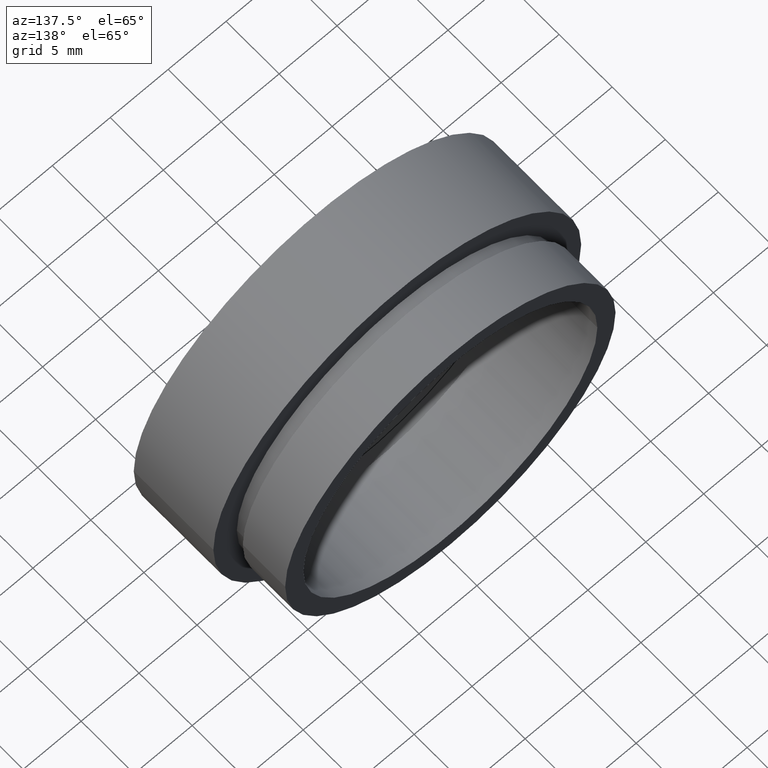
[diagram: clean part render]
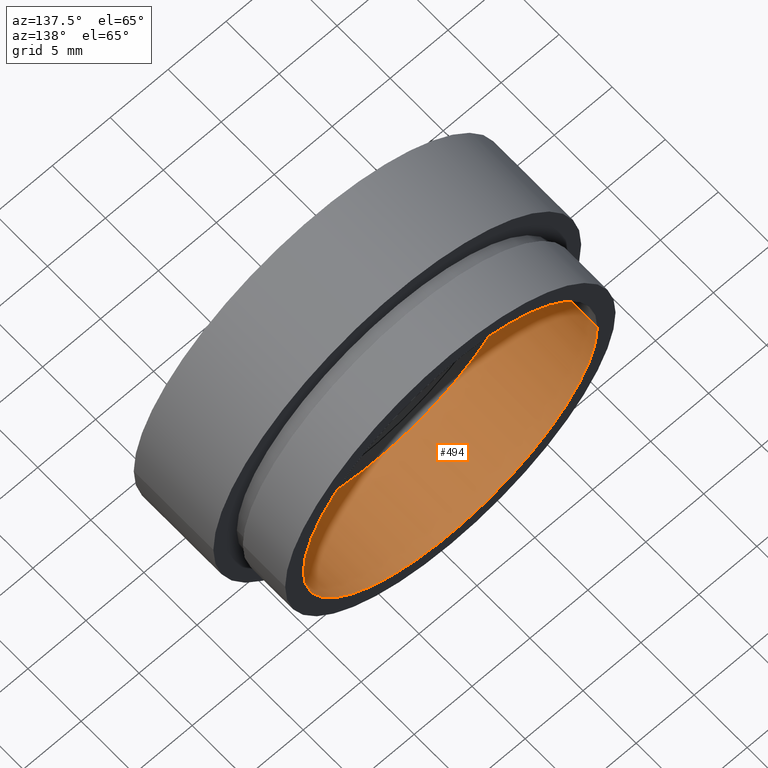
[diagram: same view with one face highlighted and labeled with its STEP entity id]
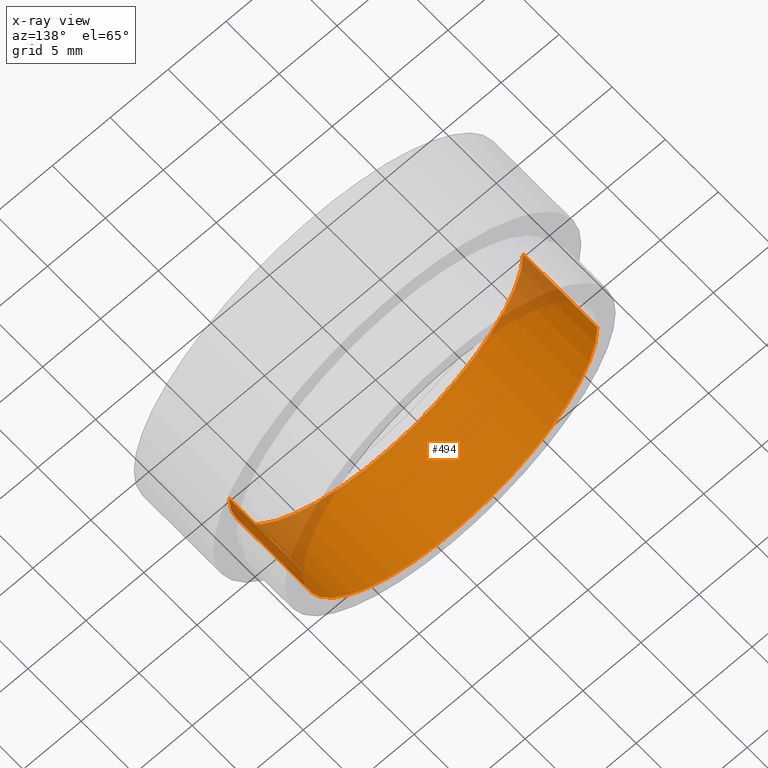
[diagram: x-ray of the same camera — body ghosted, the highlighted face saturated]
A machine part, auxiliary view. The second image highlights one B-rep face of the part: STEP entity #494.
The next image is the same camera in x-ray: the body ghosted, the highlighted face saturated — about 11% of this face is hidden behind the body in this view.
In plain terms, the highlighted cylindrical surface (partial cylindrical patch) has radius 12.69 mm, axis along (-0, 1, -0).
Its self-contained STEP definition (entity closure, byte-faithful):
#2 = DIRECTION ( 'NONE',  ( -1.000000000000000000, -1.367000375080226200E-016, 0.0000000000000000000 ) ) ;
#34 = EDGE_CURVE ( 'NONE', #369, #287, #443, .T. ) ;
#38 = DIRECTION ( 'NONE',  ( -1.000000000000000000, 0.0000000000000000000, 0.0000000000000000000 ) ) ;
#58 = CARTESIAN_POINT ( 'NONE',  ( -12.68999999999999600, 5.499999999999994700, 0.0000000000000000000 ) ) ;
#83 = DIRECTION ( 'NONE',  ( -1.224646799147351000E-016, 1.000000000000000000, -0.0000000000000000000 ) ) ;
#84 = AXIS2_PLACEMENT_3D ( 'NONE', #520, #218, #2 ) ;
#149 = FACE_OUTER_BOUND ( 'NONE', #154, .T. ) ;
#154 = EDGE_LOOP ( 'NONE', ( #221, #315, #478, #454 ) ) ;
#162 = AXIS2_PLACEMENT_3D ( 'NONE', #204, #213, #38 ) ;
#164 = CARTESIAN_POINT ( 'NONE',  ( 1.394385078907593200E-015, 5.499999999999996400, 0.0000000000000000000 ) ) ;
#193 = EDGE_CURVE ( 'NONE', #379, #212, #288, .T. ) ;
#204 = CARTESIAN_POINT ( 'NONE',  ( 0.0000000000000000000, 16.88601823708207700, 0.0000000000000000000 ) ) ;
#212 = VERTEX_POINT ( 'NONE', #421 ) ;
#213 = DIRECTION ( 'NONE',  ( -1.224646799147351000E-016, 1.000000000000000000, -0.0000000000000000000 ) ) ;
#218 = DIRECTION ( 'NONE',  ( -1.224646799147351000E-016, 1.000000000000000000, -0.0000000000000000000 ) ) ;
#221 = ORIENTED_EDGE ( 'NONE', *, *, #34, .F. ) ;
#261 = EDGE_CURVE ( 'NONE', #287, #212, #539, .T. ) ;
#287 = VERTEX_POINT ( 'NONE', #58 ) ;
#288 = CIRCLE ( 'NONE', #84, 12.69000000000000000 ) ;
#312 = DIRECTION ( 'NONE',  ( -1.224646799147351000E-016, 1.000000000000000000, -0.0000000000000000000 ) ) ;
#315 = ORIENTED_EDGE ( 'NONE', *, *, #546, .T. ) ;
#340 = CYLINDRICAL_SURFACE ( 'NONE', #162, 12.69000000000000000 ) ;
#369 = VERTEX_POINT ( 'NONE', #403 ) ;
#379 = VERTEX_POINT ( 'NONE', #400 ) ;
#389 = VECTOR ( 'NONE', #435, 1000.000000000000000 ) ;
#400 = CARTESIAN_POINT ( 'NONE',  ( 12.69000000000000000, 12.49999999999999800, 1.554076788117991300E-015 ) ) ;
#403 = CARTESIAN_POINT ( 'NONE',  ( 12.69000000000000000, 5.499999999999998200, 1.554076788117991300E-015 ) ) ;
#404 = AXIS2_PLACEMENT_3D ( 'NONE', #164, #312, #408 ) ;
#408 = DIRECTION ( 'NONE',  ( -1.000000000000000000, -1.367000375080226400E-016, 0.0000000000000000000 ) ) ;
#421 = CARTESIAN_POINT ( 'NONE',  ( -12.69000000000000000, 12.49999999999999500, 0.0000000000000000000 ) ) ;
#435 = DIRECTION ( 'NONE',  ( -1.224646799147351000E-016, 1.000000000000000000, -0.0000000000000000000 ) ) ;
#443 = CIRCLE ( 'NONE', #404, 12.68999999999999800 ) ;
#454 = ORIENTED_EDGE ( 'NONE', *, *, #261, .F. ) ;
#478 = ORIENTED_EDGE ( 'NONE', *, *, #193, .T. ) ;
#489 = CARTESIAN_POINT ( 'NONE',  ( -12.69000000000000000, 16.88601823708207700, 0.0000000000000000000 ) ) ;
#494 = ADVANCED_FACE ( 'NONE', ( #149 ), #340, .F. ) ;
#520 = CARTESIAN_POINT ( 'NONE',  ( 5.371323195044474300E-016, 12.49999999999999600, 0.0000000000000000000 ) ) ;
#539 = LINE ( 'NONE', #489, #389 ) ;
#546 = EDGE_CURVE ( 'NONE', #369, #379, #549, .T. ) ;
#549 = LINE ( 'NONE', #617, #591 ) ;
#591 = VECTOR ( 'NONE', #83, 1000.000000000000000 ) ;
#617 = CARTESIAN_POINT ( 'NONE',  ( 12.69000000000000000, 16.88601823708207700, 1.554076788117991300E-015 ) ) ;